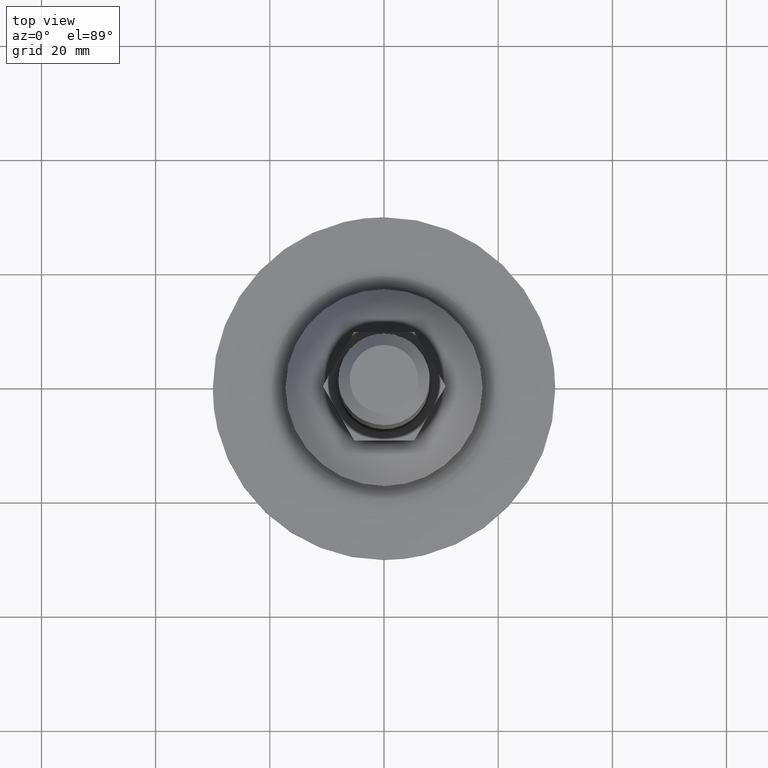
[diagram: clean part render]
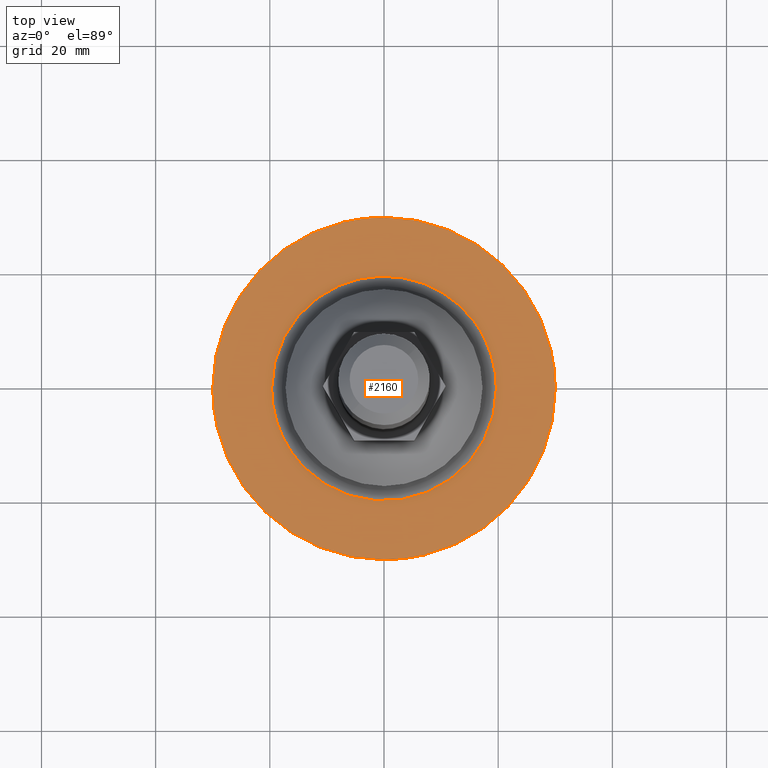
[diagram: same view with one face highlighted and labeled with its STEP entity id]
A machine part, top view. The second image highlights one B-rep face of the part: STEP entity #2160.
In plain terms, the highlighted face is a freeform B-spline surface patch.
Its self-contained STEP definition (entity closure, byte-faithful):
#1908=CARTESIAN_POINT('',(-17.810370395241780,-8.380924143207288,2.900000000000000));
#1909=VERTEX_POINT('',#1908);
#1910=CARTESIAN_POINT('',(-19.683728893064199,0.0,2.900000000000000));
#1911=VERTEX_POINT('',#1910);
#1912=CARTESIAN_POINT('',(-17.810370395241780,-8.380924143207288,2.900000000000000));
#1913=CARTESIAN_POINT('',(-18.194362155251898,-7.564955011294375,2.899999999999994));
#1914=CARTESIAN_POINT('',(-18.915553332487850,-5.711655298853672,2.900000000000010));
#1915=CARTESIAN_POINT('',(-19.547207507955900,-2.885790165001246,2.899999999999985));
#1916=CARTESIAN_POINT('',(-19.683750629465020,-0.901806746992471,2.900000000000000));
#1917=CARTESIAN_POINT('',(-19.683728893064199,0.0,2.900000000000000));
#1918=B_SPLINE_CURVE_WITH_KNOTS('',3,(#1912,#1913,#1914,#1915,#1916,#1917),.UNSPECIFIED.,.F.,.U.,(4,1,1,4),(4.448077E-009,2.705429150136112,5.951944021996122,8.657373167684138),.UNSPECIFIED.);
#1919=EDGE_CURVE('',#1909,#1911,#1918,.T.);
#1933=CARTESIAN_POINT('',(17.810370395241780,8.380924143207286,2.900000000000000));
#1934=VERTEX_POINT('',#1933);
#1945=CARTESIAN_POINT('',(-19.683728893064199,0.0,2.900000000000000));
#1946=CARTESIAN_POINT('',(-19.683742417720090,0.796308857824498,2.900000000000004));
#1947=CARTESIAN_POINT('',(-19.574369987115571,2.596701137188720,2.899999999999995));
#1948=CARTESIAN_POINT('',(-19.014629740389161,5.388529772206057,2.900000000000004));
#1949=CARTESIAN_POINT('',(-17.932377506039739,8.321082282121703,2.899999999999998));
#1950=CARTESIAN_POINT('',(-16.564747022452721,10.740390728320550,2.900000000000003));
#1951=CARTESIAN_POINT('',(-14.873371478589551,12.981867387065350,2.899999999999959));
#1952=CARTESIAN_POINT('',(-12.873440834670911,15.010352530344930,2.899999999999965));
#1953=CARTESIAN_POINT('',(-10.283308657122589,16.883894897275571,2.900000000000207));
#1954=CARTESIAN_POINT('',(-7.707540660204317,18.177007205890259,2.899999999999587));
#1955=CARTESIAN_POINT('',(-5.280205992222129,19.010356707327649,2.900000000000462));
#1956=CARTESIAN_POINT('',(-2.974321199284885,19.506648460533189,2.900000000000023));
#1957=CARTESIAN_POINT('',(-0.245331478787656,19.754750889655881,2.899999999999859));
#1958=CARTESIAN_POINT('',(2.391677539952196,19.603909710186969,2.900000000000051));
#1959=CARTESIAN_POINT('',(5.213778064150595,19.040757554440368,2.900000000000039));
#1960=CARTESIAN_POINT('',(7.481807716342166,18.266716731139748,2.899999999999749));
#1961=CARTESIAN_POINT('',(9.720364576722185,17.162683683892912,2.900000000000112));
#1962=CARTESIAN_POINT('',(11.532125153732490,16.003999117745291,2.899999999999969));
#1963=CARTESIAN_POINT('',(13.281029648905159,14.582649942619939,2.900000000000002));
#1964=CARTESIAN_POINT('',(15.008512953020130,12.827899899717099,2.900000000000002));
#1965=CARTESIAN_POINT('',(16.569994069369681,10.743616548502480,2.899999999999996));
#1966=CARTESIAN_POINT('',(17.456590339399099,9.132798852105067,2.900000000000002));
#1967=CARTESIAN_POINT('',(17.810370395241780,8.380924143207286,2.900000000000000));
#1968=B_SPLINE_CURVE_WITH_KNOTS('',3,(#1945,#1946,#1947,#1948,#1949,#1950,#1951,#1952,#1953,#1954,#1955,#1956,#1957,#1958,#1959,#1960,#1961,#1962,#1963,#1964,#1965,#1966,#1967),.UNSPECIFIED.,.F.,.U.,(4,1,1,1,1,1,1,1,1,1,1,1,1,1,1,1,1,1,1,1,4),(0.000000129456240,2.388932724339803,5.401166355261218,8.517240561208816,11.737203337460331,13.710719162540061,16.930671302704958,20.254505977810791,23.266683613654038,25.551844227641290,27.940753899174130,30.329748478329481,33.757414963238851,35.834824383184227,38.950899944023377,40.924415960625417,43.313407182872538,45.390812523304419,47.675943661939229,50.688113982749002,53.180963654883598),.UNSPECIFIED.);
#1969=EDGE_CURVE('',#1911,#1934,#1968,.T.);
#2003=CARTESIAN_POINT('',(19.683728893064199,0.0,2.900000000000000));
#2004=VERTEX_POINT('',#2003);
#2005=CARTESIAN_POINT('',(19.683728893064199,0.0,2.900000000000000));
#2006=CARTESIAN_POINT('',(19.683771105959341,-0.900189904841100,2.900000000000001));
#2007=CARTESIAN_POINT('',(19.567138763297240,-2.596689562571804,2.900000000000002));
#2008=CARTESIAN_POINT('',(19.082996160729270,-5.011391445821820,2.900000000000009));
#2009=CARTESIAN_POINT('',(18.391903908746020,-7.120678242345872,2.899999999999985));
#2010=CARTESIAN_POINT('',(17.420397078399940,-9.268520910925716,2.899999999999995));
#2011=CARTESIAN_POINT('',(16.176392996609788,-11.315164814445330,2.900000000000033));
#2012=CARTESIAN_POINT('',(14.587963415511810,-13.287128838465231,2.899999999999929));
#2013=CARTESIAN_POINT('',(13.070907025805781,-14.762116429434680,2.900000000000135));
#2014=CARTESIAN_POINT('',(11.279933199627511,-16.184225657820981,2.899999999999821));
#2015=CARTESIAN_POINT('',(9.482988684908310,-17.304890785881270,2.900000000000142));
#2016=CARTESIAN_POINT('',(7.189642665827649,-18.374103242991328,2.899999999999794));
#2017=CARTESIAN_POINT('',(5.112194365102423,-19.056861215439572,2.900000000000541));
#2018=CARTESIAN_POINT('',(2.801600683610939,-19.522346173318141,2.899999999999569));
#2019=CARTESIAN_POINT('',(0.728965116017778,-19.710686715117770,2.900000000000181));
#2020=CARTESIAN_POINT('',(-1.974502368182001,-19.656240402265588,2.899999999999936));
#2021=CARTESIAN_POINT('',(-4.718910720719967,-19.198404845773521,2.900000000000020));
#2022=CARTESIAN_POINT('',(-7.446947291093080,-18.275260467593249,2.899999999999998));
#2023=CARTESIAN_POINT('',(-9.944992095990564,-17.067881720952670,2.899999999999998));
#2024=CARTESIAN_POINT('',(-12.160624901423850,-15.567087759552139,2.900000000000003));
#2025=CARTESIAN_POINT('',(-14.464662026773031,-13.461287532042309,2.899999999999998));
#2026=CARTESIAN_POINT('',(-16.322856824055432,-11.163029305455550,2.900000000000003));
#2027=CARTESIAN_POINT('',(-17.397640635701151,-9.258099923646366,2.900000000000000));
#2028=CARTESIAN_POINT('',(-17.810370395241780,-8.380924143207288,2.900000000000000));
#2029=B_SPLINE_CURVE_WITH_KNOTS('',3,(#2005,#2006,#2007,#2008,#2009,#2010,#2011,#2012,#2013,#2014,#2015,#2016,#2017,#2018,#2019,#2020,#2021,#2022,#2023,#2024,#2025,#2026,#2027,#2028),.UNSPECIFIED.,.F.,.U.,(4,1,1,1,1,1,1,1,1,1,1,1,1,1,1,1,1,1,1,1,1,4),(0.000000129487681,2.700565774287895,5.089541426297856,7.374692796344775,9.348216305277269,12.152677045043500,14.541678108961481,16.930671302723329,18.488723424860950,21.397039964131420,23.266683613666711,26.071174159601849,27.940753899184070,30.329748478338129,32.303244691081623,36.042560828094643,38.639288032075193,40.924415960628110,44.352108681692577,46.637247072960598,50.272680395636840,53.180963654883591),.UNSPECIFIED.);
#2030=EDGE_CURVE('',#2004,#1909,#2029,.T.);
#2032=CARTESIAN_POINT('',(17.810370395241780,8.380924143207286,2.900000000000000));
#2033=CARTESIAN_POINT('',(18.194361115186741,7.564954628639153,2.900000000000000));
#2034=CARTESIAN_POINT('',(18.915557504521122,5.711655948632675,2.900000000000000));
#2035=CARTESIAN_POINT('',(19.547200708542420,2.885789383640887,2.900000000000000));
#2036=CARTESIAN_POINT('',(19.683754709355160,0.901807190458883,2.899999999999998));
#2037=CARTESIAN_POINT('',(19.683728893064199,0.0,2.900000000000000));
#2038=B_SPLINE_CURVE_WITH_KNOTS('',3,(#2032,#2033,#2034,#2035,#2036,#2037),.UNSPECIFIED.,.F.,.U.,(4,1,1,4),(4.448303E-009,2.705429150136188,5.951944021996121,8.657373167684135),.UNSPECIFIED.);
#2039=EDGE_CURVE('',#1934,#2004,#2038,.T.);
#2048=CARTESIAN_POINT('',(32.996999883708362,-32.996999883708320,2.900000000000000));
#2049=CARTESIAN_POINT('',(-32.997001493033771,-32.996999883708320,2.900000000000000));
#2050=CARTESIAN_POINT('',(32.996999883708362,32.997001493033743,2.900000000000000));
#2051=CARTESIAN_POINT('',(-32.997001493033771,32.997001493033743,2.900000000000000));
#2052=B_SPLINE_SURFACE_WITH_KNOTS('',1,1,((#2048,#2050),(#2049,#2051)),.UNSPECIFIED.,.F.,.F.,.U.,(2,2),(2,2),(0.0,65.994001376742119),(0.0,65.994001376742062),.UNSPECIFIED.);
#2053=CARTESIAN_POINT('',(-0.000001325907159,-29.999999999999972,2.900000000000000));
#2054=VERTEX_POINT('',#2053);
#2055=CARTESIAN_POINT('',(-30.0,0.0,2.900000000000000));
#2056=VERTEX_POINT('',#2055);
#2057=CARTESIAN_POINT('',(-0.000001325907159,-29.999999999999972,2.900000000000000));
#2058=CARTESIAN_POINT('',(-1.411264485215063,-30.000062223186539,2.900000000000002));
#2059=CARTESIAN_POINT('',(-4.295136308971194,-29.796156637920710,2.899999999999996));
#2060=CARTESIAN_POINT('',(-8.142319999290104,-28.957016866586422,2.900000000000000));
#2061=CARTESIAN_POINT('',(-11.964689114340150,-27.602566484776101,2.900000000000003));
#2062=CARTESIAN_POINT('',(-15.093058082033069,-26.015838610122412,2.899999999999995));
#2063=CARTESIAN_POINT('',(-18.202066701226070,-23.924580936462810,2.900000000000014));
#2064=CARTESIAN_POINT('',(-20.829922127118440,-21.699659194294892,2.899999999999961));
#2065=CARTESIAN_POINT('',(-23.406792867552479,-18.891328216374990,2.900000000000032));
#2066=CARTESIAN_POINT('',(-25.824842376307771,-15.480374822629170,2.899999999999982));
#2067=CARTESIAN_POINT('',(-27.635192330566380,-11.911197370040320,2.900000000000030));
#2068=CARTESIAN_POINT('',(-28.784511564499880,-8.602891986015871,2.899999999999994));
#2069=CARTESIAN_POINT('',(-29.713138335337540,-4.847279459551426,2.900000000000016));
#2070=CARTESIAN_POINT('',(-30.000303243814241,-2.024877490503348,2.899999999999959));
#2071=CARTESIAN_POINT('',(-30.0,0.0,2.900000000000000));
#2072=B_SPLINE_CURVE_WITH_KNOTS('',3,(#2057,#2058,#2059,#2060,#2061,#2062,#2063,#2064,#2065,#2066,#2067,#2068,#2069,#2070,#2071),.UNSPECIFIED.,.F.,.U.,(4,1,1,1,1,1,1,1,1,1,1,1,4),(0.000000033181763,4.233790792016066,8.651656055023572,11.780990999442309,16.382953688992139,19.144129287742821,23.009783986604141,26.691281791950971,30.556930450807268,35.527050520313068,38.656385142616791,41.049409187712513,47.123962980247413),.UNSPECIFIED.);
#2073=EDGE_CURVE('',#2054,#2056,#2072,.T.);
#2074=ORIENTED_EDGE('',*,*,#2073,.F.);
#2075=CARTESIAN_POINT('',(21.761230889506130,-20.650637043739181,2.899999999999963));
#2076=VERTEX_POINT('',#2075);
#2077=CARTESIAN_POINT('',(21.761230889506130,-20.650637043739181,2.899999999999963));
#2078=CARTESIAN_POINT('',(20.888365168948930,-21.570509429584149,2.899999999999964));
#2079=CARTESIAN_POINT('',(19.165421157244712,-23.169628086247759,2.899999999999970));
#2080=CARTESIAN_POINT('',(16.294070611936629,-25.267051810858820,2.899999999999971));
#2081=CARTESIAN_POINT('',(13.311874041898269,-26.961689799182789,2.899999999999988));
#2082=CARTESIAN_POINT('',(10.210932702266810,-28.270713201805119,2.899999999999977));
#2083=CARTESIAN_POINT('',(6.866657453454378,-29.274761631423310,2.899999999999995));
#2084=CARTESIAN_POINT('',(3.487251076342684,-29.870055535839960,2.899999999999991));
#2085=CARTESIAN_POINT('',(1.077871820649364,-30.000011479335139,2.899999999999999));
#2086=CARTESIAN_POINT('',(-0.000001325907159,-29.999999999999972,2.900000000000000));
#2087=B_SPLINE_CURVE_WITH_KNOTS('',3,(#2077,#2078,#2079,#2080,#2081,#2082,#2083,#2084,#2085,#2086),.UNSPECIFIED.,.F.,.U.,(4,1,1,1,1,1,1,4),(8.844545E-009,3.804277761755557,7.037919145193836,10.651983742980971,14.075818601507571,17.119251553501272,21.113756996686298,24.347385038391739),.UNSPECIFIED.);
#2088=EDGE_CURVE('',#2076,#2054,#2087,.T.);
#2089=ORIENTED_EDGE('',*,*,#2088,.F.);
#2090=CARTESIAN_POINT('',(30.0,0.0,2.900000000000000));
#2091=VERTEX_POINT('',#2090);
#2092=CARTESIAN_POINT('',(30.0,0.0,2.900000000000000));
#2093=CARTESIAN_POINT('',(30.000086128305920,-1.482853675856682,2.900000000000001));
#2094=CARTESIAN_POINT('',(29.828118716812408,-3.796068385187286,2.899999999999992));
#2095=CARTESIAN_POINT('',(29.144913045728462,-7.352318267276546,2.899999999999988));
#2096=CARTESIAN_POINT('',(28.206902483897810,-10.421969881396080,2.899999999999974));
#2097=CARTESIAN_POINT('',(26.865115030930891,-13.465649708418550,2.899999999999976));
#2098=CARTESIAN_POINT('',(24.902049167418319,-16.926131306483391,2.899999999999977));
#2099=CARTESIAN_POINT('',(23.108812339008502,-19.230995058979321,2.899999999999972));
#2100=CARTESIAN_POINT('',(21.761230889506130,-20.650637043739181,2.899999999999963));
#2101=B_SPLINE_CURVE_WITH_KNOTS('',3,(#2092,#2093,#2094,#2095,#2096,#2097,#2098,#2099,#2100),.UNSPECIFIED.,.F.,.U.,(4,1,1,1,1,1,4),(9.706731E-009,4.448549708650372,6.939740306648599,10.854480965730181,14.057419698831950,16.904492365913729,22.776580001482131),.UNSPECIFIED.);
#2102=EDGE_CURVE('',#2091,#2076,#2101,.T.);
#2103=ORIENTED_EDGE('',*,*,#2102,.F.);
#2104=CARTESIAN_POINT('',(0.000001325906044,29.999999999999972,2.900000000000000));
#2105=VERTEX_POINT('',#2104);
#2106=CARTESIAN_POINT('',(0.000001325906044,29.999999999999972,2.900000000000000));
#2107=CARTESIAN_POINT('',(1.165818726894173,30.000027746726261,2.899999999999995));
#2108=CARTESIAN_POINT('',(3.497461881271924,29.863927488022028,2.900000000000011));
#2109=CARTESIAN_POINT('',(6.584291491345575,29.318549967734089,2.899999999999997));
#2110=CARTESIAN_POINT('',(9.481820247149994,28.507105000178779,2.900000000000002));
#2111=CARTESIAN_POINT('',(12.408896934259710,27.388348578078830,2.899999999999998));
#2112=CARTESIAN_POINT('',(15.187927763909659,25.935647451692390,2.900000000000008));
#2113=CARTESIAN_POINT('',(17.899580229078520,24.135760378641091,2.899999999999975));
#2114=CARTESIAN_POINT('',(20.090620969069381,22.348855633559658,2.900000000000079));
#2115=CARTESIAN_POINT('',(22.218549264768850,20.220892571507370,2.899999999999948));
#2116=CARTESIAN_POINT('',(24.142478567948899,17.905736047654418,2.900000000000034));
#2117=CARTESIAN_POINT('',(26.045945440676821,15.038001538157181,2.899999999999979));
#2118=CARTESIAN_POINT('',(27.886977489347750,11.352624553359940,2.900000000000029));
#2119=CARTESIAN_POINT('',(29.092399964986591,7.665776276911462,2.899999999999948));
#2120=CARTESIAN_POINT('',(29.835134397462419,3.742879533467420,2.900000000000102));
#2121=CARTESIAN_POINT('',(30.000073221484129,1.411259142772557,2.899999999999859));
#2122=CARTESIAN_POINT('',(30.0,0.0,2.900000000000000));
#2123=B_SPLINE_CURVE_WITH_KNOTS('',3,(#2106,#2107,#2108,#2109,#2110,#2111,#2112,#2113,#2114,#2115,#2116,#2117,#2118,#2119,#2120,#2121,#2122),.UNSPECIFIED.,.F.,.U.,(4,1,1,1,1,1,1,1,1,1,1,1,1,1,4),(0.000000033180569,3.497456283052095,6.994950175487453,9.387976969933604,12.517303244627019,16.382953688993620,18.775961146759681,22.273441264021940,24.850517346116519,27.795752868380170,31.293255817490952,35.158893964516132,40.129014034171192,42.890191616253738,47.123962980248031),.UNSPECIFIED.);
#2124=EDGE_CURVE('',#2105,#2091,#2123,.T.);
#2125=ORIENTED_EDGE('',*,*,#2124,.F.);
#2126=CARTESIAN_POINT('',(-21.761230889506340,20.650637043739369,2.899999999999963));
#2127=VERTEX_POINT('',#2126);
#2128=CARTESIAN_POINT('',(-21.761230889506340,20.650637043739369,2.899999999999963));
#2129=CARTESIAN_POINT('',(-20.975633629398189,21.478495388655769,2.899999999999966));
#2130=CARTESIAN_POINT('',(-18.985964563861280,23.349000397916392,2.899999999999971));
#2131=CARTESIAN_POINT('',(-15.927858202766931,25.523880713993961,2.899999999999964));
#2132=CARTESIAN_POINT('',(-12.395462344526550,27.399871736377921,2.900000000000003));
#2133=CARTESIAN_POINT('',(-9.014843787040935,28.702355409885381,2.899999999999976));
#2134=CARTESIAN_POINT('',(-4.755285170596338,29.734650298203938,2.899999999999996));
#2135=CARTESIAN_POINT('',(-1.775339130206179,30.000171296808599,2.899999999999995));
#2136=CARTESIAN_POINT('',(0.000001325906044,29.999999999999972,2.900000000000000));
#2137=B_SPLINE_CURVE_WITH_KNOTS('',3,(#2128,#2129,#2130,#2131,#2132,#2133,#2134,#2135,#2136),.UNSPECIFIED.,.F.,.U.,(4,1,1,1,1,1,4),(8.845419E-009,3.423845098639124,8.179204278016526,11.222638384862670,15.407320569368050,19.021395232601080,24.347385038390751),.UNSPECIFIED.);
#2138=EDGE_CURVE('',#2127,#2105,#2137,.T.);
#2139=ORIENTED_EDGE('',*,*,#2138,.F.);
#2140=CARTESIAN_POINT('',(-30.0,0.0,2.900000000000000));
#2141=CARTESIAN_POINT('',(-30.000140968616481,1.720112435645333,2.899999999999998));
#2142=CARTESIAN_POINT('',(-29.718667073194659,4.982335221260968,2.899999999999997));
#2143=CARTESIAN_POINT('',(-28.706614739092242,8.960458121875702,2.899999999999975));
#2144=CARTESIAN_POINT('',(-27.468669888859932,12.173397014303591,2.899999999999984));
#2145=CARTESIAN_POINT('',(-26.196174723149429,14.724798826691030,2.899999999999972));
#2146=CARTESIAN_POINT('',(-24.324857589446029,17.686632527594380,2.899999999999982));
#2147=CARTESIAN_POINT('',(-22.782021388352710,19.575071294019828,2.899999999999938));
#2148=CARTESIAN_POINT('',(-21.761230889506340,20.650637043739369,2.899999999999963));
#2149=B_SPLINE_CURVE_WITH_KNOTS('',3,(#2140,#2141,#2142,#2143,#2144,#2145,#2146,#2147,#2148),.UNSPECIFIED.,.F.,.U.,(4,1,1,1,1,1,4),(9.702354E-009,5.160318223368805,9.786820658115794,12.277999944560190,15.480951716973230,18.328030302536419,22.776580001482241),.UNSPECIFIED.);
#2150=EDGE_CURVE('',#2056,#2127,#2149,.T.);
#2151=ORIENTED_EDGE('',*,*,#2150,.F.);
#2152=EDGE_LOOP('',(#2074,#2089,#2103,#2125,#2139,#2151));
#2153=FACE_OUTER_BOUND('',#2152,.T.);
#2154=ORIENTED_EDGE('',*,*,#1969,.T.);
#2155=ORIENTED_EDGE('',*,*,#2039,.T.);
#2156=ORIENTED_EDGE('',*,*,#2030,.T.);
#2157=ORIENTED_EDGE('',*,*,#1919,.T.);
#2158=EDGE_LOOP('',(#2154,#2155,#2156,#2157));
#2159=FACE_BOUND('',#2158,.T.);
#2160=ADVANCED_FACE('',(#2153,#2159),#2052,.F.);